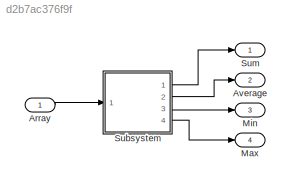
MODEL slx_d2b7ac376f9f
KIND model
CONFIG AbsTol = auto
CONFIG EnableMultiTasking = off
CONFIG FixedStep = auto
CONFIG MaxStep = auto
CONFIG MinStep = auto
CONFIG RelTol = 1e-3
CONFIG SampleTimeConstraint = Unconstrained
CONFIG SolverName = VariableStepAuto
CONFIG StartTime = 0.0
CONFIG StopTime = 10.0
BLOCK [Inport] Array
BLOCK [Outport] Average
  Port = 2
BLOCK [Outport] Max
  Port = 4
BLOCK [Outport] Min
  Port = 3
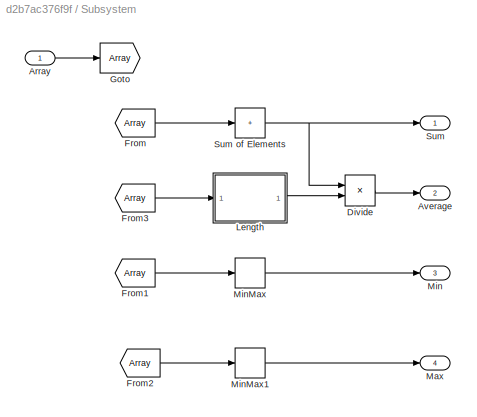
BLOCK [SubSystem] Subsystem
  Ports = [1, 4]
  RequestExecContextInheritance = off
BLOCK [Inport] Subsystem/Array
BLOCK [Outport] Subsystem/Average
  Port = 2
BLOCK [Product] Subsystem/Divide
  Inputs = */
  Ports = [2, 1]
BLOCK [From] Subsystem/From
  GotoTag = Array
BLOCK [From] Subsystem/From1
  GotoTag = Array
BLOCK [From] Subsystem/From2
  GotoTag = Array
BLOCK [From] Subsystem/From3
  GotoTag = Array
BLOCK [Goto] Subsystem/Goto
  GotoTag = Array
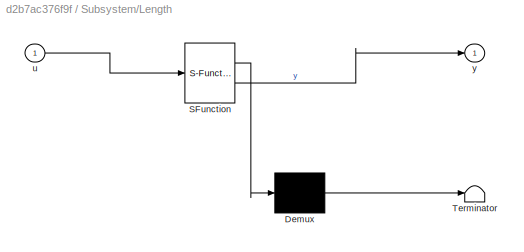
BLOCK [SubSystem] Subsystem/Length
  ErrorFcn = Stateflow.Translate.translate
  PermitHierarchicalResolution = ExplicitOnly
  Ports = [1, 1]
  RequestExecContextInheritance = off
  SFBlockType = MATLAB Function
  TreatAsAtomicUnit = on
BLOCK [Demux] Subsystem/Length/ Demux 
  Outputs = 1
  Ports = [1, 1]
BLOCK [S-Function] Subsystem/Length/ SFunction 
  EnableBusSupport = on
  FunctionName = sf_sfun
  PortCounts = [1 2]
  Ports = [1, 2]
  SFcnIsStateOwnerBlock = off
  SFunctionDeploymentMode = off
  Tag = Stateflow S-Function 2
BLOCK [Terminator] Subsystem/Length/ Terminator 
BLOCK [Inport] Subsystem/Length/u
BLOCK [Outport] Subsystem/Length/y
BLOCK [Outport] Subsystem/Max
  Port = 4
BLOCK [Outport] Subsystem/Min
  Port = 3
BLOCK [MinMax] Subsystem/MinMax
  Ports = [1, 1]
BLOCK [MinMax] Subsystem/MinMax1
  Function = max
  Ports = [1, 1]
BLOCK [Outport] Subsystem/Sum
BLOCK [Sum] Subsystem/Sum of Elements
  IconShape = rectangular
  Inputs = +
  Ports = [1, 1]
BLOCK [Outport] Sum
LINE Array:1 -> Subsystem:1
LINE Subsystem/Array:1 -> Subsystem/Goto:1
LINE Subsystem/Divide:1 -> Subsystem/Average:1
LINE Subsystem/From1:1 -> Subsystem/MinMax:1
LINE Subsystem/From2:1 -> Subsystem/MinMax1:1
LINE Subsystem/From3:1 -> Subsystem/Length:1
LINE Subsystem/From:1 -> Subsystem/Sum of Elements:1
LINE Subsystem/Length:1 -> Subsystem/Divide:2
LINE Subsystem/MinMax1:1 -> Subsystem/Max:1
LINE Subsystem/MinMax:1 -> Subsystem/Min:1
NET Subsystem/Sum of Elements:1 -> Subsystem/Divide:1, Subsystem/Sum:1
LINE Subsystem:1 -> Sum:1
LINE Subsystem:2 -> Average:1
LINE Subsystem:3 -> Min:1
LINE Subsystem:4 -> Max:1
note: NET lines group one-source signal fan-out (src -> all destinations, sorted); 1:1 wires keep LINE
CHART Subsystem/Length states=1 transitions=1
  STATE_LABEL 'eML_blk_kernel()'
  STATE_LABEL 'SCRIPT:\nfunction y = fcn(u)\n\ny=length(u);\n'
CHART  states=0 transitions=0
